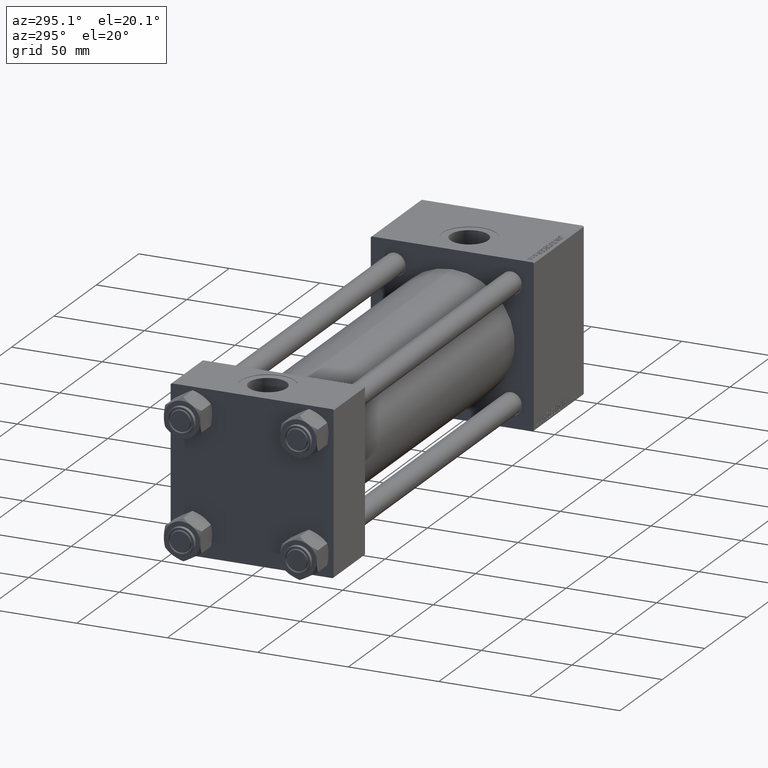
[diagram: clean part render]
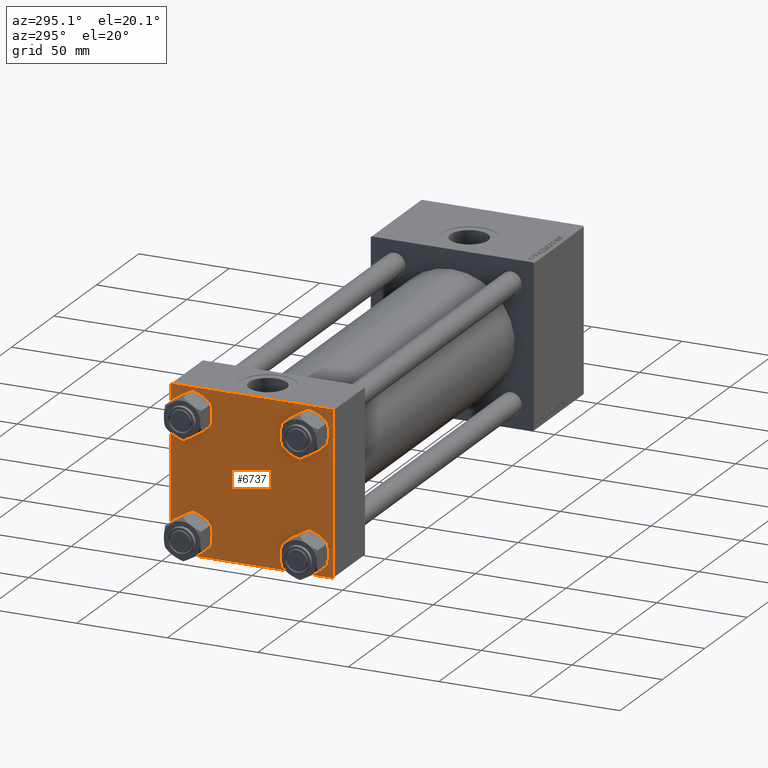
[diagram: same view with one face highlighted and labeled with its STEP entity id]
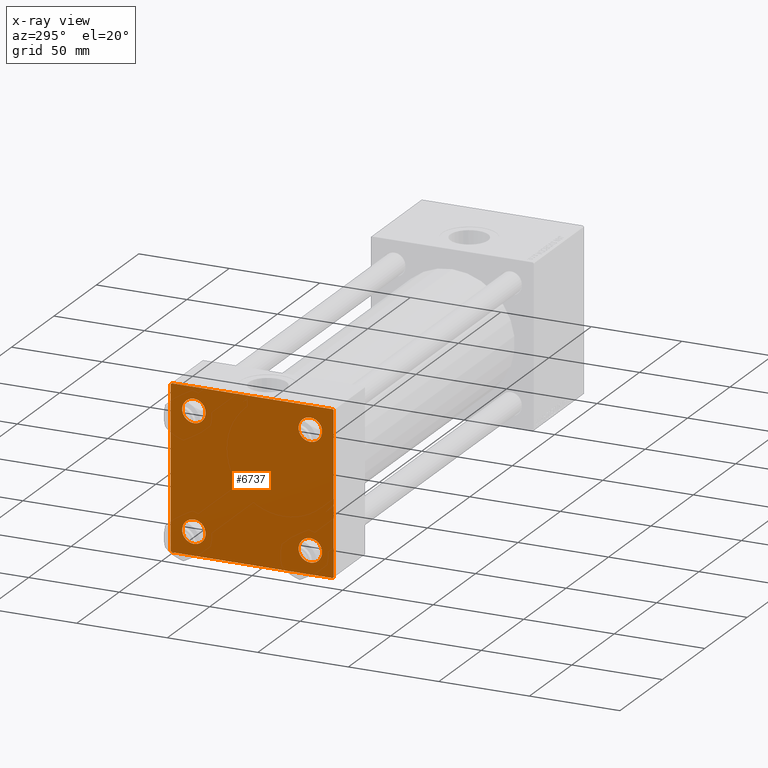
[diagram: x-ray of the same camera — body ghosted, the highlighted face saturated]
A machine part, auxiliary view. The second image highlights one B-rep face of the part: STEP entity #6737.
The next image is the same camera in x-ray: the body ghosted, the highlighted face saturated — about 0% of this face is hidden behind the body in this view.
In plain terms, the highlighted planar face has unit normal (-1, 0, 0).
Its self-contained STEP definition (entity closure, byte-faithful):
#206 = VERTEX_POINT ( 'NONE', #33917 ) ;
#497 = CARTESIAN_POINT ( 'NONE',  ( 0.000000000000000000, -32.14999999999997726, -32.15000000000001279 ) ) ;
#792 = LINE ( 'NONE', #12697, #42397 ) ;
#1509 = ORIENTED_EDGE ( 'NONE', *, *, #42242, .T. ) ;
#1603 = AXIS2_PLACEMENT_3D ( 'NONE', #30236, #19568, #35028 ) ;
#2583 = CARTESIAN_POINT ( 'NONE',  ( 0.000000000000000000, -45.00000000000000711, 44.49999999999997158 ) ) ;
#2593 = CARTESIAN_POINT ( 'NONE',  ( 0.000000000000000000, -32.14999999999997726, -25.65000000000003411 ) ) ;
#2773 = EDGE_CURVE ( 'NONE', #15411, #34470, #3424, .T. ) ;
#2962 = CARTESIAN_POINT ( 'NONE',  ( 0.000000000000000000, 44.74999999999998579, -44.74999999999998579 ) ) ;
#3069 = ORIENTED_EDGE ( 'NONE', *, *, #2773, .T. ) ;
#3090 = EDGE_CURVE ( 'NONE', #47148, #50072, #47630, .T. ) ;
#3384 = ORIENTED_EDGE ( 'NONE', *, *, #48329, .T. ) ;
#3396 = FACE_BOUND ( 'NONE', #11641, .T. ) ;
#3424 = LINE ( 'NONE', #10789, #36416 ) ;
#3529 = EDGE_LOOP ( 'NONE', ( #18016, #9904 ) ) ;
#3885 = DIRECTION ( 'NONE',  ( -1.000000000000000000, 0.000000000000000000, -0.000000000000000000 ) ) ;
#4532 = CARTESIAN_POINT ( 'NONE',  ( 0.000000000000000000, 32.14999999999999147, -38.64999999999998437 ) ) ;
#5704 = DIRECTION ( 'NONE',  ( 0.000000000000000000, -1.000000000000000000, -1.541976423090495387E-16 ) ) ;
#5784 = EDGE_CURVE ( 'NONE', #25812, #18270, #42899, .T. ) ;
#5908 = CARTESIAN_POINT ( 'NONE',  ( 0.000000000000000000, 32.14999999999999147, -32.15000000000000568 ) ) ;
#6084 = ORIENTED_EDGE ( 'NONE', *, *, #5784, .T. ) ;
#6433 = ORIENTED_EDGE ( 'NONE', *, *, #42225, .T. ) ;
#6737 = ADVANCED_FACE ( 'NONE', ( #22892, #18845, #26205, #3396, #33795 ), #22648, .T. ) ;
#8130 = CARTESIAN_POINT ( 'NONE',  ( 0.000000000000000000, 32.14999999999999147, 32.15000000000000568 ) ) ;
#9358 = ORIENTED_EDGE ( 'NONE', *, *, #47431, .T. ) ;
#9837 = EDGE_CURVE ( 'NONE', #18667, #22750, #37200, .T. ) ;
#9904 = ORIENTED_EDGE ( 'NONE', *, *, #13331, .T. ) ;
#10215 = DIRECTION ( 'NONE',  ( 1.000000000000000000, -0.000000000000000000, 0.000000000000000000 ) ) ;
#10458 = EDGE_CURVE ( 'NONE', #206, #25812, #19903, .T. ) ;
#10622 = EDGE_CURVE ( 'NONE', #206, #36725, #44726, .T. ) ;
#10789 = CARTESIAN_POINT ( 'NONE',  ( 0.000000000000000000, 44.99999999999998579, -44.99999999999998579 ) ) ;
#11641 = EDGE_LOOP ( 'NONE', ( #1509, #34295 ) ) ;
#11863 = DIRECTION ( 'NONE',  ( 0.000000000000000000, 0.000000000000000000, 1.000000000000000000 ) ) ;
#11927 = DIRECTION ( 'NONE',  ( 0.000000000000000000, 0.000000000000000000, 1.000000000000000000 ) ) ;
#12188 = DIRECTION ( 'NONE',  ( 1.000000000000000000, -0.000000000000000000, 0.000000000000000000 ) ) ;
#12426 = EDGE_LOOP ( 'NONE', ( #6084, #25685, #3069, #6433, #30171, #40067, #21555, #19496 ) ) ;
#12460 = VECTOR ( 'NONE', #41166, 1000.000000000000000 ) ;
#12697 = CARTESIAN_POINT ( 'NONE',  ( -0.000000000000000000, -44.75000000000029843, 44.74999999999967315 ) ) ;
#12966 = CIRCLE ( 'NONE', #30753, 6.499999999999977796 ) ;
#13331 = EDGE_CURVE ( 'NONE', #22750, #18667, #14675, .T. ) ;
#13727 = VECTOR ( 'NONE', #28122, 1000.000000000000114 ) ;
#14116 = DIRECTION ( 'NONE',  ( 0.000000000000000000, 0.000000000000000000, 1.000000000000000000 ) ) ;
#14310 = CIRCLE ( 'NONE', #42618, 6.499999999999977796 ) ;
#14623 = DIRECTION ( 'NONE',  ( 1.000000000000000000, -0.000000000000000000, 0.000000000000000000 ) ) ;
#14668 = VECTOR ( 'NONE', #18414, 1000.000000000000114 ) ;
#14675 = CIRCLE ( 'NONE', #21938, 6.499999999999977796 ) ;
#15411 = VERTEX_POINT ( 'NONE', #46518 ) ;
#15826 = CARTESIAN_POINT ( 'NONE',  ( 0.000000000000000000, 32.14999999999999147, 32.15000000000000568 ) ) ;
#15956 = DIRECTION ( 'NONE',  ( 1.000000000000000000, -0.000000000000000000, 0.000000000000000000 ) ) ;
#15993 = CARTESIAN_POINT ( 'NONE',  ( 0.000000000000000000, -32.14999999999997726, 25.64999999999999147 ) ) ;
#16621 = CARTESIAN_POINT ( 'NONE',  ( 0.000000000000000000, 44.74999999999999289, 44.74999999999999289 ) ) ;
#18016 = ORIENTED_EDGE ( 'NONE', *, *, #9837, .T. ) ;
#18270 = VERTEX_POINT ( 'NONE', #33587 ) ;
#18414 = DIRECTION ( 'NONE',  ( -0.000000000000000000, -0.7071067811865474617, -0.7071067811865474617 ) ) ;
#18575 = DIRECTION ( 'NONE',  ( 1.000000000000000000, -0.000000000000000000, 0.000000000000000000 ) ) ;
#18667 = VERTEX_POINT ( 'NONE', #30413 ) ;
#18845 = FACE_BOUND ( 'NONE', #29855, .T. ) ;
#19496 = ORIENTED_EDGE ( 'NONE', *, *, #10458, .T. ) ;
#19568 = DIRECTION ( 'NONE',  ( 1.000000000000000000, -0.000000000000000000, 0.000000000000000000 ) ) ;
#19825 = CARTESIAN_POINT ( 'NONE',  ( 0.000000000000000000, 44.99999999999998579, 45.00000000000001421 ) ) ;
#19903 = LINE ( 'NONE', #16621, #38023 ) ;
#20021 = CARTESIAN_POINT ( 'NONE',  ( 0.000000000000000000, 32.14999999999999147, 25.65000000000002700 ) ) ;
#20187 = CIRCLE ( 'NONE', #40409, 6.499999999999977796 ) ;
#20512 = CIRCLE ( 'NONE', #48851, 6.500000000000019540 ) ;
#21555 = ORIENTED_EDGE ( 'NONE', *, *, #10622, .F. ) ;
#21917 = CARTESIAN_POINT ( 'NONE',  ( 0.000000000000000000, 44.99999999999998579, 45.00000000000001421 ) ) ;
#21938 = AXIS2_PLACEMENT_3D ( 'NONE', #5908, #10215, #36815 ) ;
#22184 = DIRECTION ( 'NONE',  ( 0.000000000000000000, -1.000000000000000000, -1.541976423090495633E-16 ) ) ;
#22648 = PLANE ( 'NONE',  #23335 ) ;
#22750 = VERTEX_POINT ( 'NONE', #4532 ) ;
#22892 = FACE_BOUND ( 'NONE', #49012, .T. ) ;
#23000 = CARTESIAN_POINT ( 'NONE',  ( 0.000000000000000000, -32.14999999999997726, 32.15000000000001279 ) ) ;
#23335 = AXIS2_PLACEMENT_3D ( 'NONE', #34053, #3885, #37847 ) ;
#23490 = VECTOR ( 'NONE', #5704, 1000.000000000000000 ) ;
#23633 = DIRECTION ( 'NONE',  ( 0.000000000000000000, 0.000000000000000000, -1.000000000000000000 ) ) ;
#24198 = EDGE_CURVE ( 'NONE', #28731, #24575, #20512, .T. ) ;
#24563 = EDGE_CURVE ( 'NONE', #42028, #38623, #26218, .T. ) ;
#24575 = VERTEX_POINT ( 'NONE', #30267 ) ;
#25231 = EDGE_CURVE ( 'NONE', #42028, #36725, #792, .T. ) ;
#25685 = ORIENTED_EDGE ( 'NONE', *, *, #49583, .T. ) ;
#25812 = VERTEX_POINT ( 'NONE', #36308 ) ;
#26205 = FACE_BOUND ( 'NONE', #3529, .T. ) ;
#26218 = LINE ( 'NONE', #41427, #12460 ) ;
#26767 = CARTESIAN_POINT ( 'NONE',  ( 0.000000000000000000, -45.00000000000000000, -44.49999999999995737 ) ) ;
#28122 = DIRECTION ( 'NONE',  ( 0.000000000000000000, -0.7071067811865474617, 0.7071067811865474617 ) ) ;
#28141 = DIRECTION ( 'NONE',  ( -0.000000000000000000, 0.7071067811865425767, 0.7071067811865524577 ) ) ;
#28506 = CARTESIAN_POINT ( 'NONE',  ( 0.000000000000000000, 32.14999999999999147, 38.64999999999999147 ) ) ;
#28731 = VERTEX_POINT ( 'NONE', #15993 ) ;
#28946 = ORIENTED_EDGE ( 'NONE', *, *, #24198, .T. ) ;
#29558 = CARTESIAN_POINT ( 'NONE',  ( 0.000000000000000000, -32.14999999999997726, -32.15000000000001279 ) ) ;
#29855 = EDGE_LOOP ( 'NONE', ( #3384, #48417 ) ) ;
#30171 = ORIENTED_EDGE ( 'NONE', *, *, #24563, .F. ) ;
#30236 = CARTESIAN_POINT ( 'NONE',  ( 0.000000000000000000, 32.14999999999999147, -32.15000000000000568 ) ) ;
#30267 = CARTESIAN_POINT ( 'NONE',  ( 0.000000000000000000, -32.14999999999997726, 38.65000000000003411 ) ) ;
#30413 = CARTESIAN_POINT ( 'NONE',  ( 0.000000000000000000, 32.14999999999999147, -25.65000000000002700 ) ) ;
#30753 = AXIS2_PLACEMENT_3D ( 'NONE', #29558, #14623, #14116 ) ;
#31269 = DIRECTION ( 'NONE',  ( 0.000000000000000000, 0.000000000000000000, 1.000000000000000000 ) ) ;
#31675 = CARTESIAN_POINT ( 'NONE',  ( 0.000000000000000000, -44.74999999999998579, -44.74999999999998579 ) ) ;
#31809 = DIRECTION ( 'NONE',  ( 0.000000000000000000, 0.7071067811865474617, -0.7071067811865474617 ) ) ;
#32007 = DIRECTION ( 'NONE',  ( 1.000000000000000000, -0.000000000000000000, 0.000000000000000000 ) ) ;
#32148 = CARTESIAN_POINT ( 'NONE',  ( 0.000000000000000000, -32.14999999999997726, -38.64999999999999147 ) ) ;
#33171 = VERTEX_POINT ( 'NONE', #20021 ) ;
#33587 = CARTESIAN_POINT ( 'NONE',  ( 0.000000000000000000, 44.99999999999998579, -44.49999999999995737 ) ) ;
#33795 = FACE_OUTER_BOUND ( 'NONE', #12426, .T. ) ;
#33917 = CARTESIAN_POINT ( 'NONE',  ( 0.000000000000000000, 44.49999999999998579, 45.00000000000001421 ) ) ;
#34053 = CARTESIAN_POINT ( 'NONE',  ( 0.000000000000000000, 0.000000000000000000, 0.000000000000000000 ) ) ;
#34295 = ORIENTED_EDGE ( 'NONE', *, *, #35008, .T. ) ;
#34470 = VERTEX_POINT ( 'NONE', #44543 ) ;
#34705 = DIRECTION ( 'NONE',  ( 0.000000000000000000, 0.000000000000000000, 1.000000000000000000 ) ) ;
#35008 = EDGE_CURVE ( 'NONE', #33171, #48518, #14310, .T. ) ;
#35028 = DIRECTION ( 'NONE',  ( 0.000000000000000000, 0.000000000000000000, 1.000000000000000000 ) ) ;
#36308 = CARTESIAN_POINT ( 'NONE',  ( 0.000000000000000000, 44.99999999999998579, 44.50000000000001421 ) ) ;
#36416 = VECTOR ( 'NONE', #22184, 1000.000000000000000 ) ;
#36725 = VERTEX_POINT ( 'NONE', #40944 ) ;
#36815 = DIRECTION ( 'NONE',  ( 0.000000000000000000, 0.000000000000000000, 1.000000000000000000 ) ) ;
#37200 = CIRCLE ( 'NONE', #1603, 6.499999999999977796 ) ;
#37334 = CARTESIAN_POINT ( 'NONE',  ( 0.000000000000000000, -32.14999999999997726, 32.15000000000001279 ) ) ;
#37821 = DIRECTION ( 'NONE',  ( 0.000000000000000000, 0.000000000000000000, 1.000000000000000000 ) ) ;
#37847 = DIRECTION ( 'NONE',  ( -0.000000000000000000, 0.000000000000000000, 1.000000000000000000 ) ) ;
#38023 = VECTOR ( 'NONE', #31809, 1000.000000000000114 ) ;
#38623 = VERTEX_POINT ( 'NONE', #26767 ) ;
#38673 = VECTOR ( 'NONE', #23633, 1000.000000000000000 ) ;
#40067 = ORIENTED_EDGE ( 'NONE', *, *, #25231, .T. ) ;
#40409 = AXIS2_PLACEMENT_3D ( 'NONE', #8130, #12188, #11927 ) ;
#40474 = AXIS2_PLACEMENT_3D ( 'NONE', #23000, #50137, #11863 ) ;
#40944 = CARTESIAN_POINT ( 'NONE',  ( 0.000000000000000000, -44.49999999999995737, 45.00000000000000000 ) ) ;
#41166 = DIRECTION ( 'NONE',  ( 0.000000000000000000, 7.709882115452476934E-17, -1.000000000000000000 ) ) ;
#41427 = CARTESIAN_POINT ( 'NONE',  ( 0.000000000000000000, -45.00000000000000711, 45.00000000000000000 ) ) ;
#42028 = VERTEX_POINT ( 'NONE', #2583 ) ;
#42225 = EDGE_CURVE ( 'NONE', #34470, #38623, #42843, .T. ) ;
#42242 = EDGE_CURVE ( 'NONE', #48518, #33171, #20187, .T. ) ;
#42397 = VECTOR ( 'NONE', #28141, 1000.000000000000114 ) ;
#42618 = AXIS2_PLACEMENT_3D ( 'NONE', #15826, #32007, #31269 ) ;
#42843 = LINE ( 'NONE', #31675, #13727 ) ;
#42899 = LINE ( 'NONE', #19825, #38673 ) ;
#44543 = CARTESIAN_POINT ( 'NONE',  ( 0.000000000000000000, -44.49999999999995737, -45.00000000000000000 ) ) ;
#44726 = LINE ( 'NONE', #21917, #23490 ) ;
#46007 = AXIS2_PLACEMENT_3D ( 'NONE', #497, #15956, #34705 ) ;
#46138 = CIRCLE ( 'NONE', #40474, 6.500000000000019540 ) ;
#46518 = CARTESIAN_POINT ( 'NONE',  ( 0.000000000000000000, 44.49999999999998579, -44.99999999999998579 ) ) ;
#46542 = LINE ( 'NONE', #2962, #14668 ) ;
#47148 = VERTEX_POINT ( 'NONE', #32148 ) ;
#47431 = EDGE_CURVE ( 'NONE', #24575, #28731, #46138, .T. ) ;
#47630 = CIRCLE ( 'NONE', #46007, 6.499999999999977796 ) ;
#48329 = EDGE_CURVE ( 'NONE', #50072, #47148, #12966, .T. ) ;
#48417 = ORIENTED_EDGE ( 'NONE', *, *, #3090, .T. ) ;
#48518 = VERTEX_POINT ( 'NONE', #28506 ) ;
#48851 = AXIS2_PLACEMENT_3D ( 'NONE', #37334, #18575, #37821 ) ;
#49012 = EDGE_LOOP ( 'NONE', ( #9358, #28946 ) ) ;
#49583 = EDGE_CURVE ( 'NONE', #18270, #15411, #46542, .T. ) ;
#50072 = VERTEX_POINT ( 'NONE', #2593 ) ;
#50137 = DIRECTION ( 'NONE',  ( 1.000000000000000000, -0.000000000000000000, 0.000000000000000000 ) ) ;